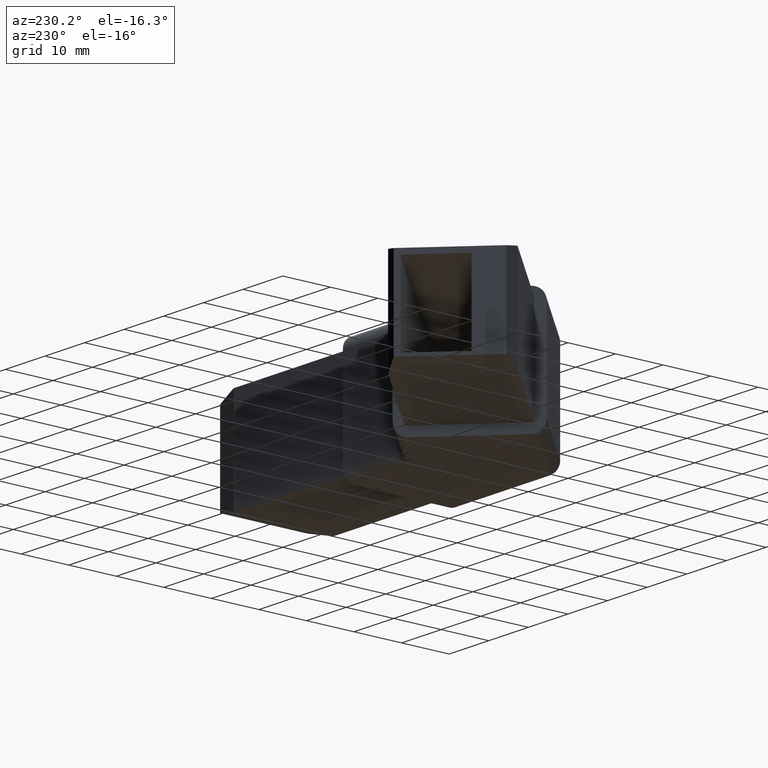
[diagram: clean part render]
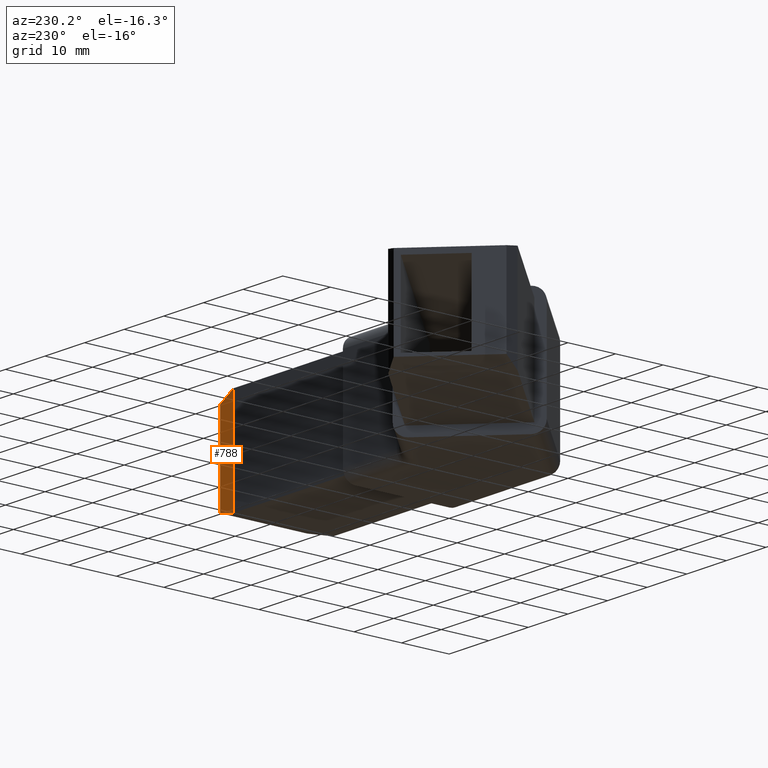
[diagram: same view with one face highlighted and labeled with its STEP entity id]
A machine part, auxiliary view. The second image highlights one B-rep face of the part: STEP entity #788.
In plain terms, the highlighted planar face has unit normal (0.2588, 0.9659, 0).
Its self-contained STEP definition (entity closure, byte-faithful):
#70=FACE_OUTER_BOUND('',#119,.T.);
#119=EDGE_LOOP('',(#583,#584,#585,#586));
#194=LINE('',#1226,#284);
#195=LINE('',#1228,#285);
#196=LINE('',#1230,#286);
#197=LINE('',#1231,#287);
#284=VECTOR('',#984,10.);
#285=VECTOR('',#985,10.);
#286=VECTOR('',#986,10.);
#287=VECTOR('',#987,10.);
#360=VERTEX_POINT('',#1224);
#361=VERTEX_POINT('',#1225);
#362=VERTEX_POINT('',#1227);
#363=VERTEX_POINT('',#1229);
#442=EDGE_CURVE('',#360,#361,#194,.T.);
#443=EDGE_CURVE('',#361,#362,#195,.T.);
#444=EDGE_CURVE('',#362,#363,#196,.T.);
#445=EDGE_CURVE('',#363,#360,#197,.T.);
#583=ORIENTED_EDGE('',*,*,#442,.T.);
#584=ORIENTED_EDGE('',*,*,#443,.T.);
#585=ORIENTED_EDGE('',*,*,#444,.T.);
#586=ORIENTED_EDGE('',*,*,#445,.T.);
#754=PLANE('',#856);
#788=ADVANCED_FACE('',(#70),#754,.T.);
#856=AXIS2_PLACEMENT_3D('',#1223,#982,#983);
#982=DIRECTION('center_axis',(0.258819045102521,0.965925826289068,0.));
#983=DIRECTION('ref_axis',(0.,0.,1.));
#984=DIRECTION('',(0.93511312653103,-0.250562807085732,-0.250562807085731));
#985=DIRECTION('',(0.,0.,-1.));
#986=DIRECTION('',(-0.935113126531029,0.250562807085731,-0.250562807085732));
#987=DIRECTION('',(0.,0.,1.));
#1223=CARTESIAN_POINT('Origin',(52.323,9.83012701892219,7.25));
#1224=CARTESIAN_POINT('',(49.823,10.5,23.));
#1225=CARTESIAN_POINT('',(54.823,9.16025403784439,21.6602540378444));
#1226=CARTESIAN_POINT('',(54.6262436834898,9.21297473395903,21.712974733959));
#1227=CARTESIAN_POINT('',(54.823,9.16025403784439,3.33974596215561));
#1228=CARTESIAN_POINT('',(54.823,9.16025403784439,7.25));
#1229=CARTESIAN_POINT('',(49.823,10.5,2.));
#1230=CARTESIAN_POINT('',(54.6262436834898,9.21297473395903,3.28702526604097));
#1231=CARTESIAN_POINT('',(49.823,10.5,7.25));